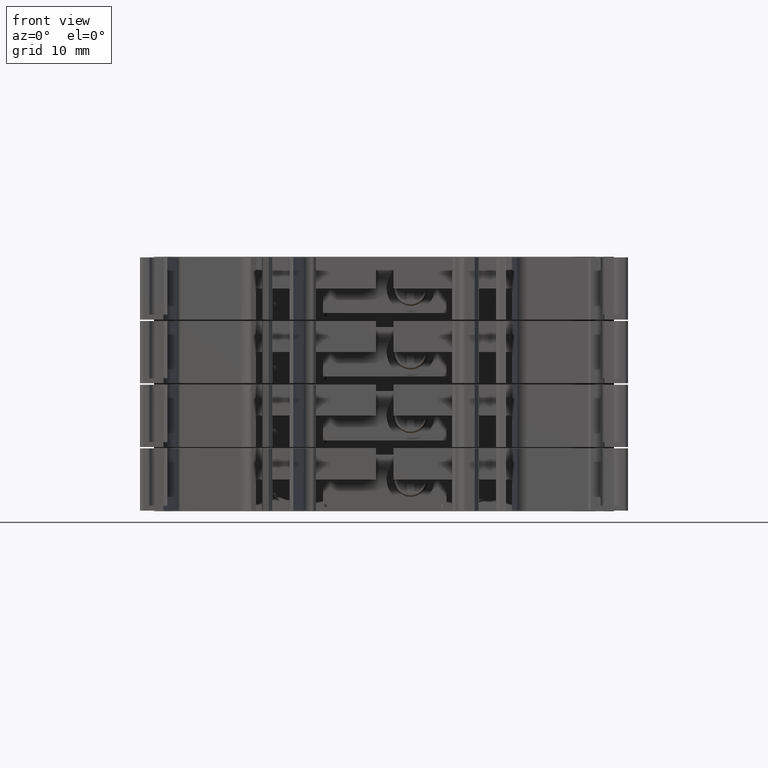
[diagram: clean part render]
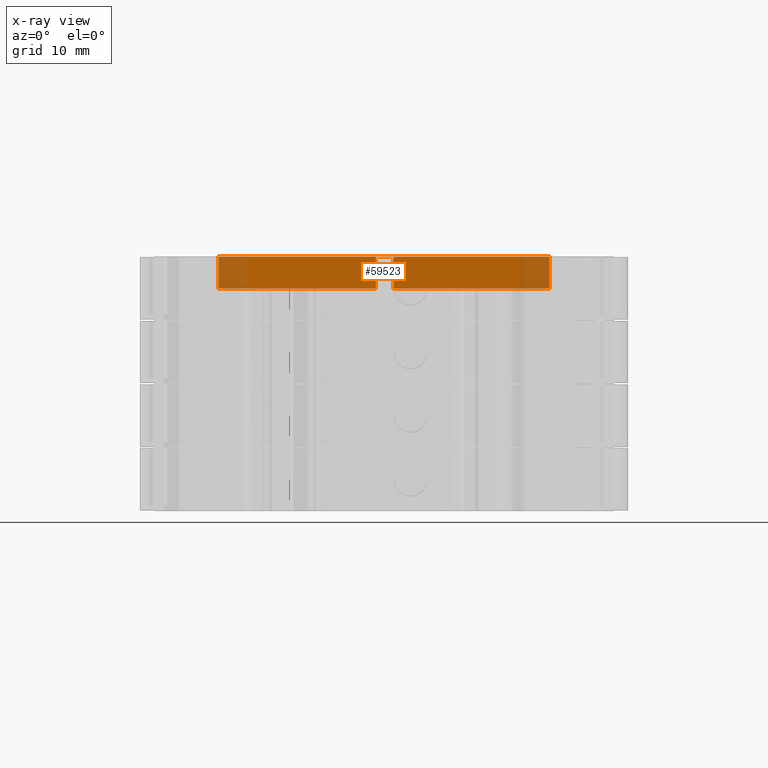
[diagram: x-ray — body ghosted, one internal face saturated and labeled with its STEP entity id]
A machine part, front view, then the same camera in x-ray: the body is ghosted and one INTERNAL B-rep face — a face not visible from any outside direction — is saturated and labeled: STEP entity #59523.
In plain terms, the highlighted planar face has unit normal (0, -1, 0).
Its self-contained STEP definition (entity closure, byte-faithful):
#4075 = ORIENTED_EDGE ( 'NONE', *, *, #57603, .F. ) ;
#4103 = ORIENTED_EDGE ( 'NONE', *, *, #56305, .F. ) ;
#4131 = ORIENTED_EDGE ( 'NONE', *, *, #57601, .F. ) ;
#4142 = ORIENTED_EDGE ( 'NONE', *, *, #57602, .F. ) ;
#4170 = ORIENTED_EDGE ( 'NONE', *, *, #57599, .F. ) ;
#4214 = ORIENTED_EDGE ( 'NONE', *, *, #57616, .F. ) ;
#4231 = ORIENTED_EDGE ( 'NONE', *, *, #57628, .F. ) ;
#4333 = ORIENTED_EDGE ( 'NONE', *, *, #57580, .F. ) ;
#10700 = VERTEX_POINT ( 'NONE', #46888 ) ;
#10737 = VERTEX_POINT ( 'NONE', #46810 ) ;
#22091 = DIRECTION ( 'NONE',  ( 1.000000000000000000, 0.0000000000000000000, -0.0000000000000000000 ) ) ;
#22109 = LINE ( 'NONE', #22120, #60137 ) ;
#22120 = CARTESIAN_POINT ( 'NONE',  ( 472.2302140059309700, 110.7985886008790000, 35.79999999999999700 ) ) ;
#22223 = LINE ( 'NONE', #22269, #60275 ) ;
#22269 = CARTESIAN_POINT ( 'NONE',  ( 471.0737764623130500, 110.7985886008790000, -73.85973354774110100 ) ) ;
#22277 = DIRECTION ( 'NONE',  ( -0.0000000000000000000, 0.0000000000000000000, 1.000000000000000000 ) ) ;
#22281 = DIRECTION ( 'NONE',  ( -0.0000000000000000000, 0.0000000000000000000, 1.000000000000000000 ) ) ;
#22283 = LINE ( 'NONE', #22298, #60315 ) ;
#22288 = DIRECTION ( 'NONE',  ( 1.000000000000000000, 2.965369450243745100E-016, 0.0000000000000000000 ) ) ;
#22291 = CARTESIAN_POINT ( 'NONE',  ( 495.6249713185750400, 110.7985886008790100, -73.85973354774110100 ) ) ;
#22298 = CARTESIAN_POINT ( 'NONE',  ( 448.8254475470134800, 110.7985886008790000, -73.85973354774110100 ) ) ;
#22302 = DIRECTION ( 'NONE',  ( 0.0000000000000000000, -0.0000000000000000000, -1.000000000000000000 ) ) ;
#22303 = LINE ( 'NONE', #22291, #60215 ) ;
#22326 = LINE ( 'NONE', #22366, #60297 ) ;
#22366 = CARTESIAN_POINT ( 'NONE',  ( 448.8254475470134800, 110.7985886008790000, 31.39999999999999900 ) ) ;
#22385 = CARTESIAN_POINT ( 'NONE',  ( 448.8254475470134800, 110.7985886008790000, 31.39999999999999900 ) ) ;
#22396 = DIRECTION ( 'NONE',  ( 1.000000000000000000, 2.965369450243745100E-016, 0.0000000000000000000 ) ) ;
#22444 = LINE ( 'NONE', #22385, #60300 ) ;
#22473 = LINE ( 'NONE', #22548, #60192 ) ;
#22497 = DIRECTION ( 'NONE',  ( 0.0000000000000000000, -0.0000000000000000000, -1.000000000000000000 ) ) ;
#22548 = CARTESIAN_POINT ( 'NONE',  ( 473.5578376820099600, 110.7985886008790100, -73.85973354774110100 ) ) ;
#24350 = PLANE ( 'NONE',  #45972 ) ;
#24485 = DIRECTION ( 'NONE',  ( 2.965369450243745100E-016, -1.000000000000000000, 0.0000000000000000000 ) ) ;
#24500 = DIRECTION ( 'NONE',  ( 1.000000000000000000, 2.965369450243745100E-016, 0.0000000000000000000 ) ) ;
#24557 = CARTESIAN_POINT ( 'NONE',  ( 448.8254475470134800, 110.7985886008790000, -73.85973354774110100 ) ) ;
#24562 = FACE_OUTER_BOUND ( 'NONE', #89912, .T. ) ;
#37249 = VECTOR ( 'NONE', #38036, 1000.000000000000000 ) ;
#38032 = CARTESIAN_POINT ( 'NONE',  ( 481.7959150493850300, 110.7985886008790000, 35.89999999999999900 ) ) ;
#38036 = DIRECTION ( 'NONE',  ( -1.000000000000000000, 0.0000000000000000000, -0.0000000000000000000 ) ) ;
#38051 = LINE ( 'NONE', #38032, #37249 ) ;
#45972 = AXIS2_PLACEMENT_3D ( 'NONE', #24557, #24485, #24500 ) ;
#46199 = VERTEX_POINT ( 'NONE', #53716 ) ;
#46209 = VERTEX_POINT ( 'NONE', #53723 ) ;
#46229 = VERTEX_POINT ( 'NONE', #53753 ) ;
#46246 = VERTEX_POINT ( 'NONE', #53797 ) ;
#46325 = VERTEX_POINT ( 'NONE', #53796 ) ;
#46341 = VERTEX_POINT ( 'NONE', #53813 ) ;
#46810 = CARTESIAN_POINT ( 'NONE',  ( 495.6249713185750400, 110.7985886008790000, 35.89999999999999900 ) ) ;
#46888 = CARTESIAN_POINT ( 'NONE',  ( 448.8254475470134800, 110.7985886008790000, 35.89999999999999900 ) ) ;
#53716 = CARTESIAN_POINT ( 'NONE',  ( 495.6249713185750400, 110.7985886008790100, 31.39999999999999900 ) ) ;
#53723 = CARTESIAN_POINT ( 'NONE',  ( 473.5578376820099600, 110.7985886008790100, 35.79999999999999700 ) ) ;
#53753 = CARTESIAN_POINT ( 'NONE',  ( 473.5578376820099600, 110.7985886008790300, 31.39999999999999900 ) ) ;
#53796 = CARTESIAN_POINT ( 'NONE',  ( 471.0737764623130500, 110.7985886008790000, 31.39999999999999900 ) ) ;
#53797 = CARTESIAN_POINT ( 'NONE',  ( 471.0737764623130500, 110.7985886008790100, 35.79999999999999700 ) ) ;
#53813 = CARTESIAN_POINT ( 'NONE',  ( 448.8254475470134800, 110.7985886008790000, 31.39999999999999900 ) ) ;
#56305 = EDGE_CURVE ( 'NONE', #10737, #10700, #38051, .T. ) ;
#57580 = EDGE_CURVE ( 'NONE', #46246, #46209, #22109, .T. ) ;
#57599 = EDGE_CURVE ( 'NONE', #10700, #46341, #22283, .T. ) ;
#57601 = EDGE_CURVE ( 'NONE', #46325, #46246, #22223, .T. ) ;
#57602 = EDGE_CURVE ( 'NONE', #46341, #46325, #22326, .T. ) ;
#57603 = EDGE_CURVE ( 'NONE', #46199, #10737, #22303, .T. ) ;
#57616 = EDGE_CURVE ( 'NONE', #46229, #46199, #22444, .T. ) ;
#57628 = EDGE_CURVE ( 'NONE', #46209, #46229, #22473, .T. ) ;
#59523 = ADVANCED_FACE ( 'NONE', ( #24562 ), #24350, .F. ) ;
#60137 = VECTOR ( 'NONE', #22091, 1000.000000000000000 ) ;
#60192 = VECTOR ( 'NONE', #22497, 1000.000000000000000 ) ;
#60215 = VECTOR ( 'NONE', #22281, 1000.000000000000000 ) ;
#60275 = VECTOR ( 'NONE', #22277, 1000.000000000000000 ) ;
#60297 = VECTOR ( 'NONE', #22288, 1000.000000000000000 ) ;
#60300 = VECTOR ( 'NONE', #22396, 1000.000000000000000 ) ;
#60315 = VECTOR ( 'NONE', #22302, 1000.000000000000000 ) ;
#89912 = EDGE_LOOP ( 'NONE', ( #4131, #4142, #4170, #4103, #4075, #4214, #4231, #4333 ) ) ;